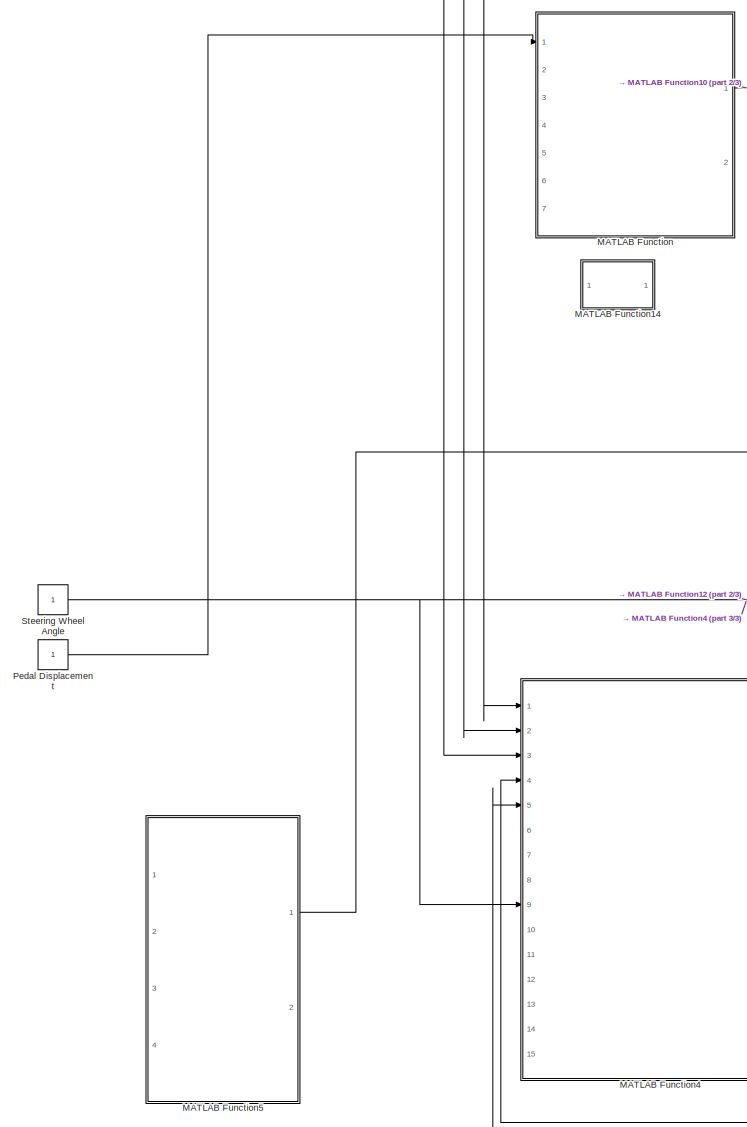
[diagram: root canvas - part 1/3, middle left region]
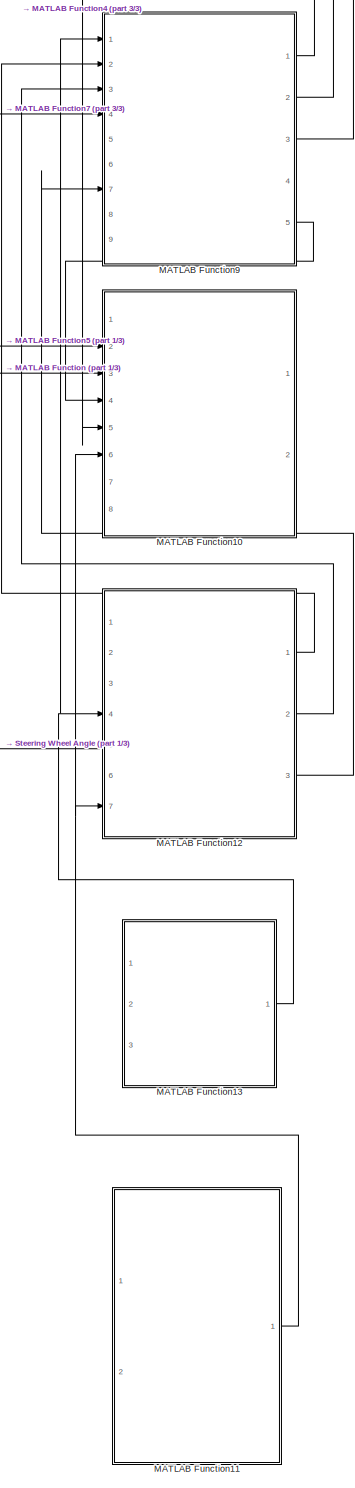
[diagram: root canvas - part 2/3, right side, full height]
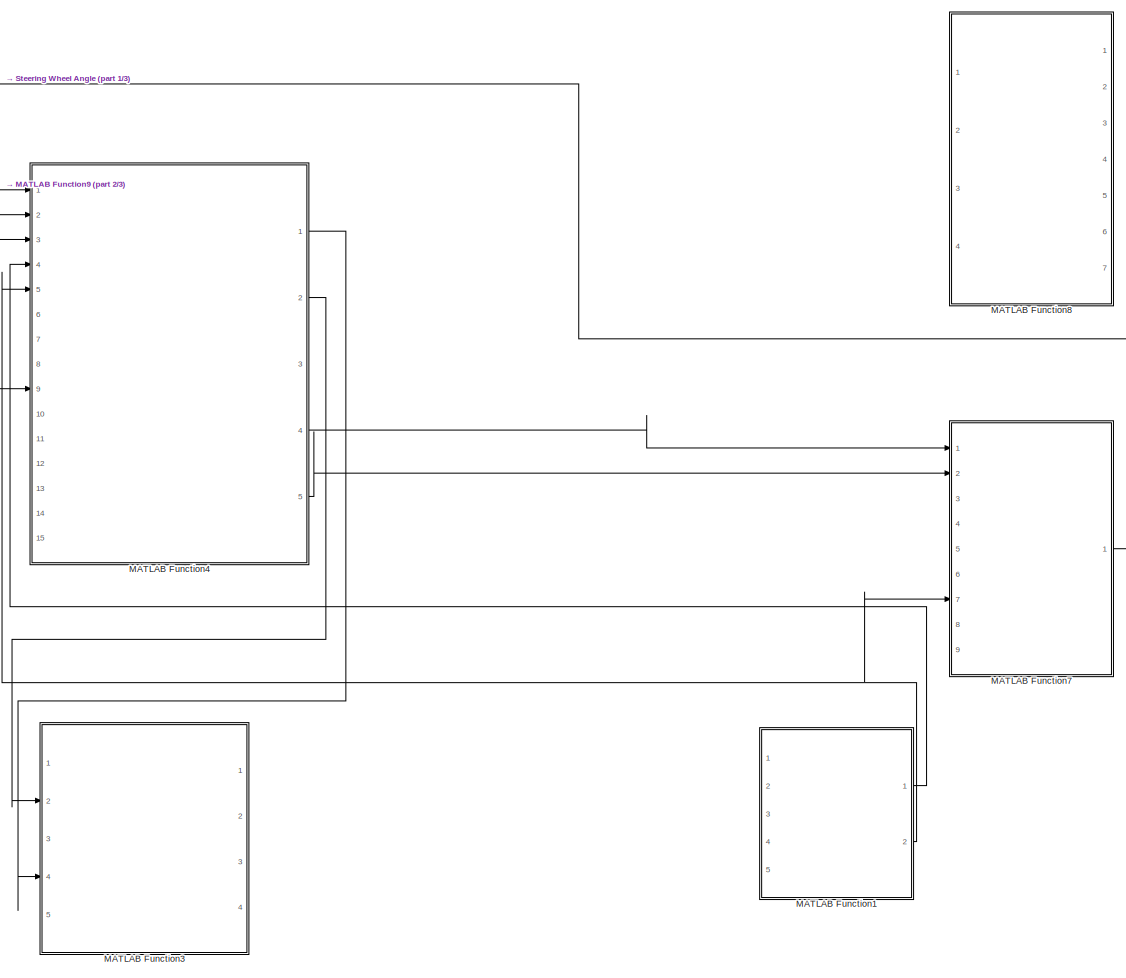
[diagram: root canvas - part 3/3, central region]
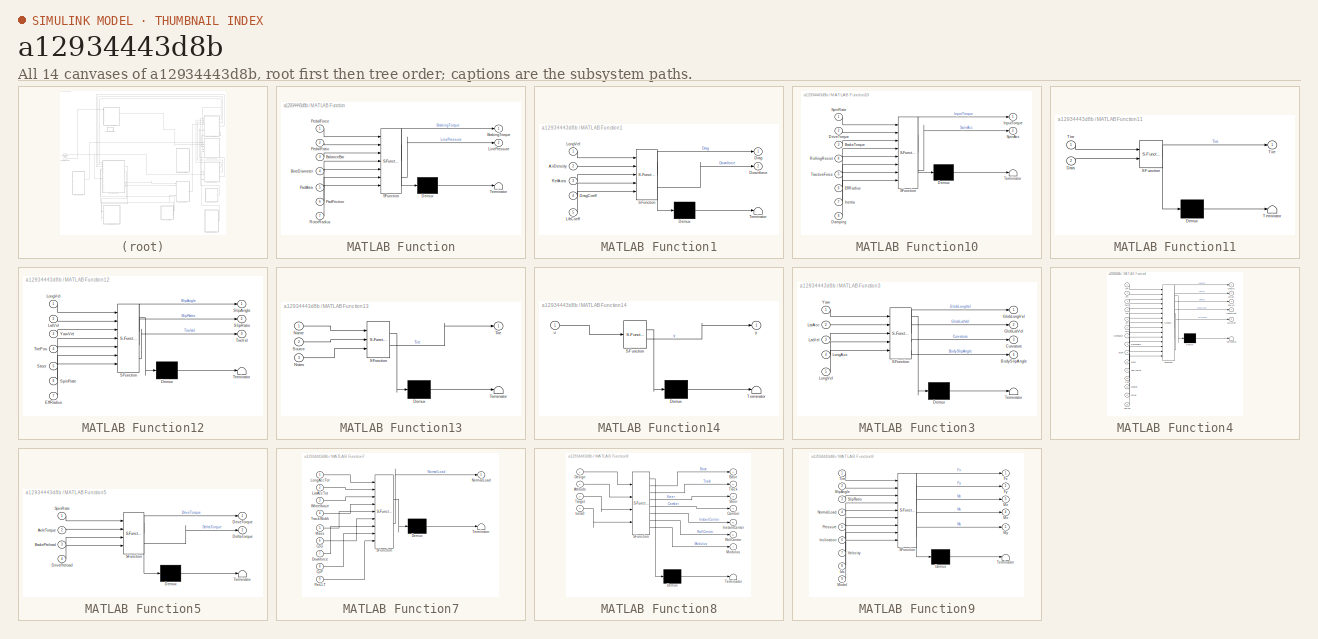
[diagram: thumbnail index - all 14 canvases of the model, root first then tree order]
MODEL slx_a12934443d8b
KIND model
CONFIG AbsTol = auto
CONFIG EnableMultiTasking = off
CONFIG FixedStep = auto
CONFIG MaxStep = auto
CONFIG MinStep = auto
CONFIG RelTol = 1e-3
CONFIG SampleTimeConstraint = Unconstrained
CONFIG SolverName = VariableStepAuto
CONFIG StartTime = 0.0
CONFIG StopTime = 10.0
BLOCK [SubSystem] MATLAB Function
  ErrorFcn = Stateflow.Translate.translate
  PermitHierarchicalResolution = ExplicitOnly
  Ports = [7, 2]
  RequestExecContextInheritance = off
  SFBlockType = MATLAB Function
  TreatAsAtomicUnit = on
BLOCK [Demux] MATLAB Function/ Demux 
  Outputs = 1
  Ports = [1, 1]
BLOCK [S-Function] MATLAB Function/ SFunction 
  EnableBusSupport = off
  FunctionName = sf_sfun
  PortCounts = [7 3]
  Ports = [7, 3]
  SFcnIsStateOwnerBlock = off
  SFunctionDeploymentMode = off
  Tag = Stateflow S-Function 2
BLOCK [Terminator] MATLAB Function/ Terminator 
BLOCK [Inport] MATLAB Function/BalanceBar
  Port = 3
BLOCK [Inport] MATLAB Function/BoreDiameter
  Port = 4
BLOCK [Outport] MATLAB Function/BrakingTorque
BLOCK [Outport] MATLAB Function/LinePressure
  Port = 2
BLOCK [Inport] MATLAB Function/PadArea
  Port = 5
BLOCK [Inport] MATLAB Function/PadFriction
  Port = 6
BLOCK [Inport] MATLAB Function/PedalForce
BLOCK [Inport] MATLAB Function/PedalRatio
  Port = 2
BLOCK [Inport] MATLAB Function/RotorRadius
  Port = 7
BLOCK [SubSystem] MATLAB Function1
  ErrorFcn = Stateflow.Translate.translate
  PermitHierarchicalResolution = ExplicitOnly
  Ports = [5, 2]
  RequestExecContextInheritance = off
  SFBlockType = MATLAB Function
  TreatAsAtomicUnit = on
BLOCK [Demux] MATLAB Function1/ Demux 
  Outputs = 1
  Ports = [1, 1]
BLOCK [S-Function] MATLAB Function1/ SFunction 
  EnableBusSupport = off
  FunctionName = sf_sfun
  PortCounts = [5 3]
  Ports = [5, 3]
  SFcnIsStateOwnerBlock = off
  SFunctionDeploymentMode = off
  Tag = Stateflow S-Function 1
BLOCK [Terminator] MATLAB Function1/ Terminator 
BLOCK [Inport] MATLAB Function1/AirDensity
  Port = 2
BLOCK [Outport] MATLAB Function1/Downforce
  Port = 2
BLOCK [Outport] MATLAB Function1/Drag
BLOCK [Inport] MATLAB Function1/DragCoeff
  Port = 4
BLOCK [Inport] MATLAB Function1/LiftCoeff
  Port = 5
BLOCK [Inport] MATLAB Function1/LongVel
BLOCK [Inport] MATLAB Function1/RefArea
  Port = 3
BLOCK [SubSystem] MATLAB Function10
  ErrorFcn = Stateflow.Translate.translate
  PermitHierarchicalResolution = ExplicitOnly
  Ports = [8, 2]
  RequestExecContextInheritance = off
  SFBlockType = MATLAB Function
  TreatAsAtomicUnit = on
BLOCK [Demux] MATLAB Function10/ Demux 
  Outputs = 1
  Ports = [1, 1]
BLOCK [S-Function] MATLAB Function10/ SFunction 
  EnableBusSupport = off
  FunctionName = sf_sfun
  PortCounts = [8 3]
  Ports = [8, 3]
  SFcnIsStateOwnerBlock = off
  SFunctionDeploymentMode = off
  Tag = Stateflow S-Function 11
BLOCK [Terminator] MATLAB Function10/ Terminator 
BLOCK [Inport] MATLAB Function10/BrakeTorque
  Port = 3
BLOCK [Inport] MATLAB Function10/Damping
  Port = 8
BLOCK [Inport] MATLAB Function10/DriveTorque
  Port = 2
BLOCK [Inport] MATLAB Function10/EffRadius
  Port = 6
BLOCK [Inport] MATLAB Function10/Inertia
  Port = 7
BLOCK [Outport] MATLAB Function10/InputTorque
BLOCK [Inport] MATLAB Function10/RollingResist
  Port = 4
BLOCK [Outport] MATLAB Function10/SpinAcc
  Port = 2
BLOCK [Inport] MATLAB Function10/SpinRate
BLOCK [Inport] MATLAB Function10/TractiveForce
  Port = 5
BLOCK [SubSystem] MATLAB Function11
  ErrorFcn = Stateflow.Translate.translate
  PermitHierarchicalResolution = ExplicitOnly
  Ports = [2, 1]
  RequestExecContextInheritance = off
  SFBlockType = MATLAB Function
  TreatAsAtomicUnit = on
BLOCK [Demux] MATLAB Function11/ Demux 
  Outputs = 1
  Ports = [1, 1]
BLOCK [S-Function] MATLAB Function11/ SFunction 
  EnableBusSupport = off
  FunctionName = sf_sfun
  PortCounts = [2 2]
  Ports = [2, 2]
  SFcnIsStateOwnerBlock = off
  SFunctionDeploymentMode = off
  Tag = Stateflow S-Function 12
BLOCK [Terminator] MATLAB Function11/ Terminator 
BLOCK [Inport] MATLAB Function11/Data
  Port = 2
BLOCK [Outport] MATLAB Function11/Tire
BLOCK [Inport] MATLAB Function11/Tire 
BLOCK [SubSystem] MATLAB Function12
  ErrorFcn = Stateflow.Translate.translate
  PermitHierarchicalResolution = ExplicitOnly
  Ports = [7, 3]
  RequestExecContextInheritance = off
  SFBlockType = MATLAB Function
  TreatAsAtomicUnit = on
BLOCK [Demux] MATLAB Function12/ Demux 
  Outputs = 1
  Ports = [1, 1]
BLOCK [S-Function] MATLAB Function12/ SFunction 
  EnableBusSupport = off
  FunctionName = sf_sfun
  PortCounts = [7 4]
  Ports = [7, 4]
  SFcnIsStateOwnerBlock = off
  SFunctionDeploymentMode = off
  Tag = Stateflow S-Function 13
BLOCK [Terminator] MATLAB Function12/ Terminator 
BLOCK [Inport] MATLAB Function12/EffRadius
  Port = 7
BLOCK [Inport] MATLAB Function12/LatVel
  Port = 2
BLOCK [Inport] MATLAB Function12/LongVel
BLOCK [Outport] MATLAB Function12/SlipAngle
BLOCK [Outport] MATLAB Function12/SlipRatio
  Port = 2
BLOCK [Inport] MATLAB Function12/SpinRate
  Port = 6
BLOCK [Inport] MATLAB Function12/Steer
  Port = 5
BLOCK [Inport] MATLAB Function12/TirePos
  Port = 4
BLOCK [Outport] MATLAB Function12/TireVel
  Port = 3
BLOCK [Inport] MATLAB Function12/YawVel
  Port = 3
BLOCK [SubSystem] MATLAB Function13
  ErrorFcn = Stateflow.Translate.translate
  PermitHierarchicalResolution = ExplicitOnly
  Ports = [3, 1]
  RequestExecContextInheritance = off
  SFBlockType = MATLAB Function
  TreatAsAtomicUnit = on
BLOCK [Demux] MATLAB Function13/ Demux 
  Outputs = 1
  Ports = [1, 1]
BLOCK [S-Function] MATLAB Function13/ SFunction 
  EnableBusSupport = off
  FunctionName = sf_sfun
  PortCounts = [3 2]
  Ports = [3, 2]
  SFcnIsStateOwnerBlock = off
  SFunctionDeploymentMode = off
  Tag = Stateflow S-Function 14
BLOCK [Terminator] MATLAB Function13/ Terminator 
BLOCK [Inport] MATLAB Function13/Name
BLOCK [Inport] MATLAB Function13/Notes
  Port = 3
BLOCK [Inport] MATLAB Function13/Source
  Port = 2
BLOCK [Outport] MATLAB Function13/Tire
BLOCK [SubSystem] MATLAB Function14
  ErrorFcn = Stateflow.Translate.translate
  PermitHierarchicalResolution = ExplicitOnly
  Ports = [1, 1]
  RequestExecContextInheritance = off
  SFBlockType = MATLAB Function
  TreatAsAtomicUnit = on
BLOCK [Demux] MATLAB Function14/ Demux 
  Outputs = 1
  Ports = [1, 1]
BLOCK [S-Function] MATLAB Function14/ SFunction 
  EnableBusSupport = off
  FunctionName = sf_sfun
  PortCounts = [1 2]
  Ports = [1, 2]
  SFcnIsStateOwnerBlock = off
  SFunctionDeploymentMode = off
  Tag = Stateflow S-Function 15
BLOCK [Terminator] MATLAB Function14/ Terminator 
BLOCK [Inport] MATLAB Function14/u
BLOCK [Outport] MATLAB Function14/y
BLOCK [SubSystem] MATLAB Function3
  ErrorFcn = Stateflow.Translate.translate
  PermitHierarchicalResolution = ExplicitOnly
  Ports = [5, 4]
  RequestExecContextInheritance = off
  SFBlockType = MATLAB Function
  TreatAsAtomicUnit = on
BLOCK [Demux] MATLAB Function3/ Demux 
  Outputs = 1
  Ports = [1, 1]
BLOCK [S-Function] MATLAB Function3/ SFunction 
  EnableBusSupport = off
  FunctionName = sf_sfun
  PortCounts = [5 5]
  Ports = [5, 5]
  SFcnIsStateOwnerBlock = off
  SFunctionDeploymentMode = off
  Tag = Stateflow S-Function 4
BLOCK [Terminator] MATLAB Function3/ Terminator 
BLOCK [Outport] MATLAB Function3/BodySlipAngle
  Port = 4
BLOCK [Outport] MATLAB Function3/Curvature
  Port = 3
BLOCK [Outport] MATLAB Function3/GlobLatVel
  Port = 2
BLOCK [Outport] MATLAB Function3/GlobLongVel
BLOCK [Inport] MATLAB Function3/LatAcc
  Port = 2
BLOCK [Inport] MATLAB Function3/LatVel
  Port = 3
BLOCK [Inport] MATLAB Function3/LongAcc
  Port = 4
BLOCK [Inport] MATLAB Function3/LongVel
  Port = 5
BLOCK [Inport] MATLAB Function3/Yaw
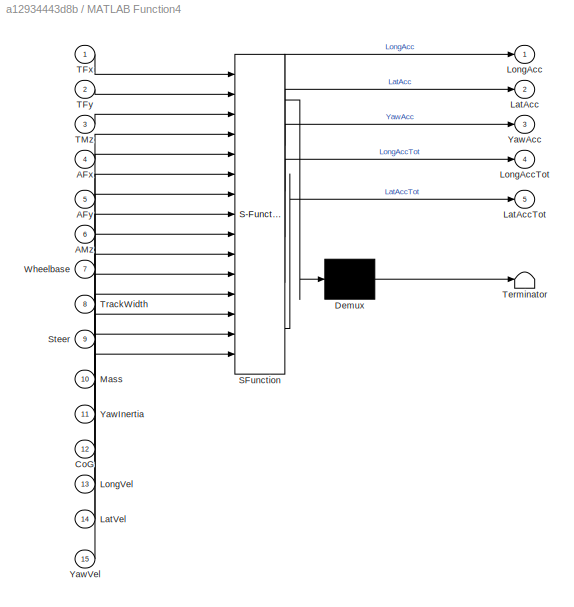
BLOCK [SubSystem] MATLAB Function4
  ErrorFcn = Stateflow.Translate.translate
  PermitHierarchicalResolution = ExplicitOnly
  Ports = [15, 5]
  RequestExecContextInheritance = off
  SFBlockType = MATLAB Function
  TreatAsAtomicUnit = on
BLOCK [Demux] MATLAB Function4/ Demux 
  Outputs = 1
  Ports = [1, 1]
BLOCK [S-Function] MATLAB Function4/ SFunction 
  EnableBusSupport = off
  FunctionName = sf_sfun
  PortCounts = [15 6]
  Ports = [15, 6]
  SFcnIsStateOwnerBlock = off
  SFunctionDeploymentMode = off
  Tag = Stateflow S-Function 5
BLOCK [Terminator] MATLAB Function4/ Terminator 
BLOCK [Inport] MATLAB Function4/AFx
  Port = 4
BLOCK [Inport] MATLAB Function4/AFy
  Port = 5
BLOCK [Inport] MATLAB Function4/AMz
  Port = 6
BLOCK [Inport] MATLAB Function4/CoG
  Port = 12
BLOCK [Outport] MATLAB Function4/LatAcc
  Port = 2
BLOCK [Outport] MATLAB Function4/LatAccTot
  Port = 5
BLOCK [Inport] MATLAB Function4/LatVel
  Port = 14
BLOCK [Outport] MATLAB Function4/LongAcc
BLOCK [Outport] MATLAB Function4/LongAccTot
  Port = 4
BLOCK [Inport] MATLAB Function4/LongVel
  Port = 13
BLOCK [Inport] MATLAB Function4/Mass
  Port = 10
BLOCK [Inport] MATLAB Function4/Steer
  Port = 9
BLOCK [Inport] MATLAB Function4/TFx
BLOCK [Inport] MATLAB Function4/TFy
  Port = 2
BLOCK [Inport] MATLAB Function4/TMz
  Port = 3
BLOCK [Inport] MATLAB Function4/TrackWidth
  Port = 8
BLOCK [Inport] MATLAB Function4/Wheelbase
  Port = 7
BLOCK [Outport] MATLAB Function4/YawAcc
  Port = 3
BLOCK [Inport] MATLAB Function4/YawInertia
  Port = 11
BLOCK [Inport] MATLAB Function4/YawVel
  Port = 15
BLOCK [SubSystem] MATLAB Function5
  ErrorFcn = Stateflow.Translate.translate
  PermitHierarchicalResolution = ExplicitOnly
  Ports = [4, 2]
  RequestExecContextInheritance = off
  SFBlockType = MATLAB Function
  TreatAsAtomicUnit = on
BLOCK [Demux] MATLAB Function5/ Demux 
  Outputs = 1
  Ports = [1, 1]
BLOCK [S-Function] MATLAB Function5/ SFunction 
  EnableBusSupport = off
  FunctionName = sf_sfun
  PortCounts = [4 3]
  Ports = [4, 3]
  SFcnIsStateOwnerBlock = off
  SFunctionDeploymentMode = off
  Tag = Stateflow S-Function 6
BLOCK [Terminator] MATLAB Function5/ Terminator 
BLOCK [Inport] MATLAB Function5/AxleTorque
  Port = 2
BLOCK [Inport] MATLAB Function5/BrakePreload
  Port = 3
BLOCK [Outport] MATLAB Function5/DeltaTorque
  Port = 2
BLOCK [Inport] MATLAB Function5/DrivePreload
  Port = 4
BLOCK [Outport] MATLAB Function5/DriveTorque
BLOCK [Inport] MATLAB Function5/SpinRate
BLOCK [SubSystem] MATLAB Function7
  ErrorFcn = Stateflow.Translate.translate
  PermitHierarchicalResolution = ExplicitOnly
  Ports = [9, 1]
  RequestExecContextInheritance = off
  SFBlockType = MATLAB Function
  TreatAsAtomicUnit = on
BLOCK [Demux] MATLAB Function7/ Demux 
  Outputs = 1
  Ports = [1, 1]
BLOCK [S-Function] MATLAB Function7/ SFunction 
  EnableBusSupport = off
  FunctionName = sf_sfun
  PortCounts = [9 2]
  Ports = [9, 2]
  SFcnIsStateOwnerBlock = off
  SFunctionDeploymentMode = off
  Tag = Stateflow S-Function 8
BLOCK [Terminator] MATLAB Function7/ Terminator 
BLOCK [Inport] MATLAB Function7/CoG
  Port = 6
BLOCK [Inport] MATLAB Function7/CoP
  Port = 8
BLOCK [Inport] MATLAB Function7/Downforce
  Port = 7
BLOCK [Inport] MATLAB Function7/LatAccTot
  Port = 2
BLOCK [Inport] MATLAB Function7/LongAccTot
BLOCK [Inport] MATLAB Function7/Mass
  Port = 5
BLOCK [Outport] MATLAB Function7/NormalLoad
BLOCK [Inport] MATLAB Function7/PerLLT
  Port = 9
BLOCK [Inport] MATLAB Function7/TrackWidth
  Port = 4
BLOCK [Inport] MATLAB Function7/Wheelbase
  Port = 3
BLOCK [SubSystem] MATLAB Function8
  ErrorFcn = Stateflow.Translate.translate
  PermitHierarchicalResolution = ExplicitOnly
  Ports = [4, 7]
  RequestExecContextInheritance = off
  SFBlockType = MATLAB Function
  TreatAsAtomicUnit = on
BLOCK [Demux] MATLAB Function8/ Demux 
  Outputs = 1
  Ports = [1, 1]
BLOCK [S-Function] MATLAB Function8/ SFunction 
  EnableBusSupport = off
  FunctionName = sf_sfun
  PortCounts = [4 8]
  Ports = [4, 8]
  SFcnIsStateOwnerBlock = off
  SFunctionDeploymentMode = off
  Tag = Stateflow S-Function 9
BLOCK [Terminator] MATLAB Function8/ Terminator 
BLOCK [Inport] MATLAB Function8/Attitude
  Port = 2
BLOCK [Outport] MATLAB Function8/Base
BLOCK [Outport] MATLAB Function8/Camber
  Port = 4
BLOCK [Inport] MATLAB Function8/Design
BLOCK [Outport] MATLAB Function8/InstantCenter
  Port = 5
BLOCK [Outport] MATLAB Function8/Modulus
  Port = 7
BLOCK [Outport] MATLAB Function8/RollCenter
  Port = 6
BLOCK [Outport] MATLAB Function8/Steer
  Port = 3
BLOCK [Inport] MATLAB Function8/Target
  Port = 3
BLOCK [Outport] MATLAB Function8/Track
  Port = 2
BLOCK [Inport] MATLAB Function8/beta0
  Port = 4
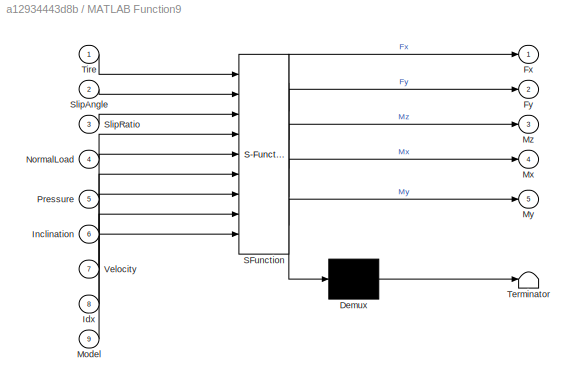
BLOCK [SubSystem] MATLAB Function9
  ErrorFcn = Stateflow.Translate.translate
  PermitHierarchicalResolution = ExplicitOnly
  Ports = [9, 5]
  RequestExecContextInheritance = off
  SFBlockType = MATLAB Function
  TreatAsAtomicUnit = on
BLOCK [Demux] MATLAB Function9/ Demux 
  Outputs = 1
  Ports = [1, 1]
BLOCK [S-Function] MATLAB Function9/ SFunction 
  EnableBusSupport = off
  FunctionName = sf_sfun
  PortCounts = [9 6]
  Ports = [9, 6]
  SFcnIsStateOwnerBlock = off
  SFunctionDeploymentMode = off
  Tag = Stateflow S-Function 10
BLOCK [Terminator] MATLAB Function9/ Terminator 
BLOCK [Outport] MATLAB Function9/Fx
BLOCK [Outport] MATLAB Function9/Fy
  Port = 2
BLOCK [Inport] MATLAB Function9/Idx
  Port = 8
BLOCK [Inport] MATLAB Function9/Inclination
  Port = 6
BLOCK [Inport] MATLAB Function9/Model
  Port = 9
BLOCK [Outport] MATLAB Function9/Mx
  Port = 4
BLOCK [Outport] MATLAB Function9/My
  Port = 5
BLOCK [Outport] MATLAB Function9/Mz
  Port = 3
BLOCK [Inport] MATLAB Function9/NormalLoad
  Port = 4
BLOCK [Inport] MATLAB Function9/Pressure
  Port = 5
BLOCK [Inport] MATLAB Function9/SlipAngle
  Port = 2
BLOCK [Inport] MATLAB Function9/SlipRatio
  Port = 3
BLOCK [Inport] MATLAB Function9/Tire
BLOCK [Inport] MATLAB Function9/Velocity
  Port = 7
BLOCK [Constant] Pedal Displacement
BLOCK [Constant] Steering Wheel Angle
NET MATLAB Function11:1 -> MATLAB Function10:6, MATLAB Function12:7
LINE MATLAB Function12:1 -> MATLAB Function9:2
LINE MATLAB Function12:2 -> MATLAB Function9:3
LINE MATLAB Function12:3 -> MATLAB Function9:7
NET MATLAB Function13:1 -> MATLAB Function12:4, MATLAB Function9:1
LINE MATLAB Function1:1 -> MATLAB Function4:4
NET MATLAB Function1:2 -> MATLAB Function4:5, MATLAB Function7:7
LINE MATLAB Function4:1 -> MATLAB Function3:4
LINE MATLAB Function4:2 -> MATLAB Function3:2
LINE MATLAB Function4:4 -> MATLAB Function7:1
LINE MATLAB Function4:5 -> MATLAB Function7:2
LINE MATLAB Function5:1 -> MATLAB Function10:2
LINE MATLAB Function7:1 -> MATLAB Function9:4
NET MATLAB Function9:1 -> MATLAB Function10:5, MATLAB Function4:1
LINE MATLAB Function9:2 -> MATLAB Function4:2
LINE MATLAB Function9:3 -> MATLAB Function4:3
LINE MATLAB Function9:5 -> MATLAB Function10:4
LINE MATLAB Function:1 -> MATLAB Function10:3
LINE Pedal Displacement:1 -> MATLAB Function:1
NET Steering Wheel Angle:1 -> MATLAB Function12:5, MATLAB Function4:9
note: NET lines group one-source signal fan-out (src -> all destinations, sorted); 1:1 wires keep LINE
CHART MATLAB Function7 states=1 transitions=1
  STATE_LABEL 'eML_blk_kernel()'
  STATE_LABEL 'SCRIPT:\nfunction NormalLoad  = SimplifiedWeightTransfer( LongAccTot, LatAccTot, ...\n        Wheelbase, TrackWidth, Mass, CoG, Downforce, CoP, PerLLT ) \n%% SimplifiedWeightTransfer - Simplified Normal Loads\n% Computes tire normal loads using simplified weight transfer and\n% aerodynamic loading.\n% \n% Inputs:\n%   LongAccTot - (n,1 numeric) Total Longitudinal Acceleration     {a_x}   [m/s^2]\n%   LatAc...<+2112ch>'
CHART MATLAB Function8 states=1 transitions=1
  STATE_LABEL 'eML_blk_kernel()'
  STATE_LABEL "SCRIPT:\nfunction [Base, Track, Steer, Camber, InstantCenter, RollCenter, Modulus] = ...\n    KinematicsEvaluation( Design, Attitude, Target, beta0 )\n%% Define Coordinate Transformations\nif strcmp(Target.Axle, 'Front')\n    L = Target.Wheelbase;\nelse\n    L = -Target.Wheelbase;\nend\n\nRotX = @(t) [1       0       0      ;  0       cosd(t) sind(t);  0       -sind(t) cosd(t)];\nRotY = @(t) [cosd(t) 0      ...<+3608ch>"
CHART MATLAB Function9 states=1 transitions=1
  STATE_LABEL 'eML_blk_kernel()'
  STATE_LABEL 'SCRIPT:\nfunction [Fx, Fy, Mz, Mx, My] = ContactPatchLoads( Tire, ...\n    SlipAngle, SlipRatio, ...\n    NormalLoad, Pressure, Inclination, Velocity, ...\n    Idx, Model )\n%% ContactPatchLoads - Tire Load Evaluation\n% This script evaluates a Pacejka contact patch tire model using the\n% formatted by TireModelFittingMain(). \n% \n% Inputs:\n%   Tire          - (struct)      Pacejka Parameters\n%   SlipAngl...<+3551ch>'
CHART MATLAB Function10 states=1 transitions=1
  STATE_LABEL 'eML_blk_kernel()'
  STATE_LABEL 'SCRIPT:\nfunction [InputTorque, SpinAcc] = WheelSpeed( SpinRate, DriveTorque, ...\n    BrakeTorque, RollingResist, TractiveForce, EffRadius, Inertia, Damping )\n%% WheelSpeed - Wheel Torque Balance & Spin Acceleration\n% Calculates brake or drive torque required for steady state applications\n% or the spin acceleration for transient applications.\n% \n% Inputs:\n%   SpinRate      - (n,1 numeric) Wheel Spi...<+2495ch>'
CHART MATLAB Function11 states=1 transitions=1
  STATE_LABEL 'eML_blk_kernel()'
  STATE_LABEL 'SCRIPT:\nfunction Tire  = RadialDeflectionFitting( Tire,Data )\n%% Radial Deflection Modeling - Loaded & Effective Radius Model\n% This fits simple poly22 surfaces for the tire loaded and effective\n% radius. Cornering data is used for determining loaded radius while drive,\n% brake, & combined data is used to determine effective radius. If the\n% drive, brake, & combined data is from a different tire (...<+3563ch>'
CHART MATLAB Function12 states=1 transitions=1
  STATE_LABEL 'eML_blk_kernel()'
  STATE_LABEL 'SCRIPT:\nfunction [SlipAngle, SlipRatio, TireVel] = SlipEstimation( ...\n    LongVel, LatVel, YawVel, TirePos, Steer, SpinRate, EffRadius)\n\n%% SlipEstimation - Slip Angle and Slip Ratio Calculations\n% Estimates tire slips and center velocity from chassis velocity and a\n% handful of tire states.\n% \n% Inputs:\n%   LongVel   - (1,1 numeric) Longitudinal Velocity {x_dot}   [m/s]\n%   LatVel    - (1,1 nume...<+1955ch>'
CHART MATLAB Function13 states=1 transitions=1
  STATE_LABEL 'eML_blk_kernel()'
  STATE_LABEL 'SCRIPT:\nfunction Tire = TireParameters(Name, Source, Notes)\n%% TireParameters - Tire Model Structure Initialization\n% This script generates an FRUCD tire model structure\n% \n% Inputs:\n%   Name   - (n,1 char)   Model Name\n%   Source - (6,1 struct) Model Source File Information\n%   Notes  - (n,1 cell)   Additional Model Notes\n%\n% Outputs:\n%   Tire   - (1,1 struct) Initialized FRUCD Tire Model \n%\n% Au...<+3304ch>'
CHART MATLAB Function14 states=1 transitions=1
  STATE_LABEL 'eML_blk_kernel()'
  STATE_LABEL 'SCRIPT:\nfunction y = fcn(u)\n\ny = u;\n'
CHART MATLAB Function1 states=1 transitions=1
  STATE_LABEL 'eML_blk_kernel()'
  STATE_LABEL 'SCRIPT:\nfunction [Drag, Downforce] = SimplifiedAeroLoads( LongVel, ...\n    AirDensity, RefArea, DragCoeff, LiftCoeff )\n%% SimplifiedWeightTransfer - Simplified Normal Loads\n% Computes tire normal loads using simplified weight transfer and\n% aerodynamic loading.\n% \n% Inputs:\n%   LongVel    - (n,1 numeric) Longitudinal Velocity {dot{x}}  [m/s]\n%   AirDensity - (n,1 numeric) Air Density           {rh...<+917ch>'
CHART MATLAB Function states=1 transitions=1
  STATE_LABEL 'eML_blk_kernel()'
  STATE_LABEL 'SCRIPT:\nfunction [BrakingTorque, LinePressure] = SimplifiedBrakingModel( PedalForce, ...\n    PedalRatio, BalanceBar  , BoreDiameter, ...\n    PadArea   , PadFriction , RotorRadius )\n%% SimplifiedBrakingModel - Braking Pressures and Torques\n% Computes brake line pressure and braking torques assuming rigid braking\n% components.\n% \n% Inputs:\n%   PedalForce   - (n,1 numeric) Pedal Force                ...<+1519ch>'
CHART MATLAB Function3 states=1 transitions=1
  STATE_LABEL 'eML_blk_kernel()'
  STATE_LABEL 'SCRIPT:\nfunction [GlobLongVel, GlobLatVel, Curvature, BodySlipAngle] = ...\n    BicycleModelWCS( Yaw, LatAcc, LatVel, LongAcc, LongVel )\n\n%% WCS - World Coordinate System Calculations\n% \n% Inputs:\n%  Yaw     - (n,1 numeric) Yaw                       {psi} [rad]\n%  LatAcc  - (n,1 numeric) Lateral Acceleration      {y_ddot} [m/s^2]\n%  LatVel  - (n,1 numeric) Lateral Velocity          {y_dot} [m/s]\n% ...<+1561ch>'
CHART MATLAB Function4 states=1 transitions=1
  STATE_LABEL 'eML_blk_kernel()'
  STATE_LABEL 'SCRIPT:\nfunction [LongAcc, LatAcc, YawAcc, LongAccTot, LatAccTot] = ...\n    FullTrack3DOFAccelerations( TFx, TFy, TMz, AFx, AFy, AMz, ... % Loads\n        Wheelbase, TrackWidth, Steer, ...                         % Geometry\n        Mass, YawInertia, CoG, ...                                % Inertia\n        LongVel, LatVel, YawVel )                                 % Velocities\n%% FullTrack3DOFAccele...<+3294ch>'
CHART MATLAB Function5 states=1 transitions=1
  STATE_LABEL 'eML_blk_kernel()'
  STATE_LABEL "SCRIPT:\nfunction [DriveTorque, DeltaTorque] = DifferentialModel(SpinRate, AxleTorque, BrakePreload, DrivePreload )\n%% DifferentialModel - Drive Torque and Delta Torque Calculations \n% Estimates the diffrential's drive torque and delta torque from the\n% spin rate, axle torque, and a set of parameters. To avoid differential\n% algebaric equations the relaxtion technique was applied to delta torque.\n%...<+2522ch>"
CHART  states=0 transitions=0
CHART  states=0 transitions=0
CHART  states=0 transitions=0
CHART  states=0 transitions=0
CHART  states=0 transitions=0
CHART  states=0 transitions=0
CHART  states=0 transitions=0
CHART  states=0 transitions=0
CHART  states=0 transitions=0
CHART  states=0 transitions=0
CHART  states=0 transitions=0
CHART  states=0 transitions=0
CHART  states=0 transitions=0
